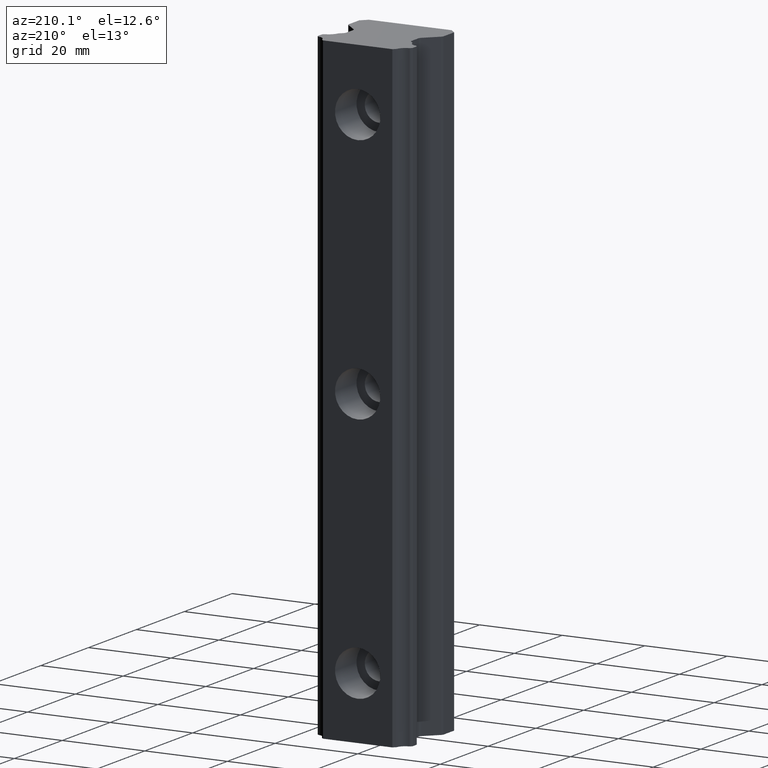
[diagram: clean part render]
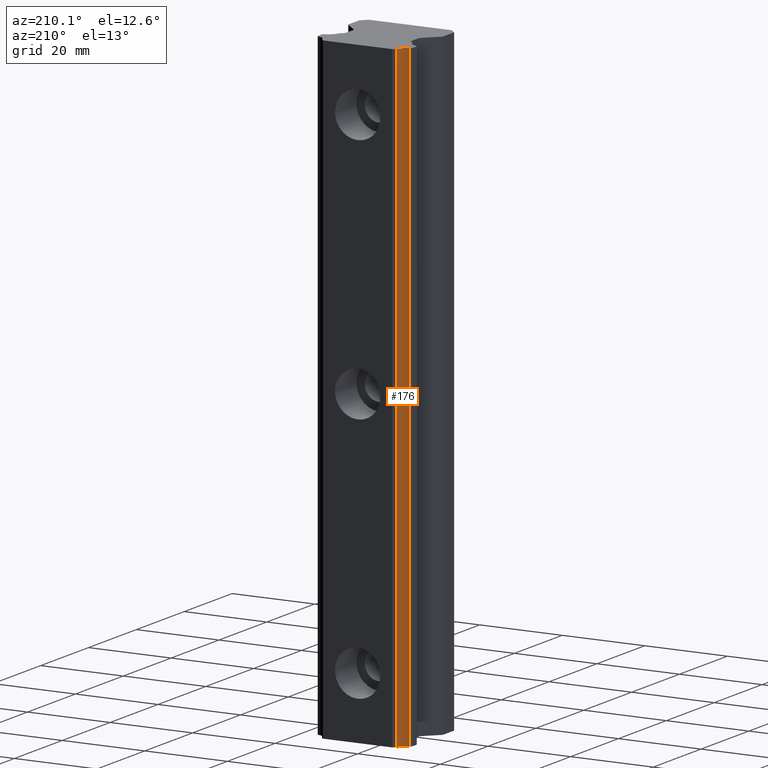
[diagram: same view with one face highlighted and labeled with its STEP entity id]
A machine part, auxiliary view. The second image highlights one B-rep face of the part: STEP entity #176.
In plain terms, the highlighted cylindrical surface (edge-blend (fillet) strip) has radius 2.43 mm, axis along (0, 0, 1).
Its self-contained STEP definition (entity closure, byte-faithful):
#103 = EDGE_CURVE ( 'NONE', #348, #424, #641, .T. ) ;
#115 = ORIENTED_EDGE ( 'NONE', *, *, #422, .F. ) ;
#166 = ORIENTED_EDGE ( 'NONE', *, *, #187, .F. ) ;
#167 = ORIENTED_EDGE ( 'NONE', *, *, #103, .T. ) ;
#168 = ORIENTED_EDGE ( 'NONE', *, *, #338, .F. ) ;
#170 = EDGE_LOOP ( 'NONE', ( #166, #168, #167, #115 ) ) ;
#176 = ADVANCED_FACE ( 'NONE', ( #790 ), #789, .F. ) ;
#187 = EDGE_CURVE ( 'NONE', #339, #423, #823, .T. ) ;
#338 = EDGE_CURVE ( 'NONE', #348, #339, #1064, .T. ) ;
#339 = VERTEX_POINT ( 'NONE', #1060 ) ;
#348 = VERTEX_POINT ( 'NONE', #1099 ) ;
#422 = EDGE_CURVE ( 'NONE', #423, #424, #1225, .T. ) ;
#423 = VERTEX_POINT ( 'NONE', #1221 ) ;
#424 = VERTEX_POINT ( 'NONE', #1220 ) ;
#637 = DIRECTION ( 'NONE',  ( 1.000000000000000000, 0.0000000000000000000, 0.0000000000000000000 ) ) ;
#638 = DIRECTION ( 'NONE',  ( 0.0000000000000000000, 0.0000000000000000000, -1.000000000000000000 ) ) ;
#639 = CARTESIAN_POINT ( 'NONE',  ( -11.44706701449000100, -0.2575229855059000300, -75.00000000000000000 ) ) ;
#640 = AXIS2_PLACEMENT_3D ( 'NONE', #639, #638, #637 ) ;
#641 = CIRCLE ( 'NONE', #640, 2.429999999999999700 ) ;
#784 = DIRECTION ( 'NONE',  ( 1.000000000000000000, 0.0000000000000000000, 0.0000000000000000000 ) ) ;
#785 = DIRECTION ( 'NONE',  ( 0.0000000000000000000, 0.0000000000000000000, 1.000000000000000000 ) ) ;
#786 = CARTESIAN_POINT ( 'NONE',  ( -11.44706701449000100, -0.2575229855059000300, -75.00000000000000000 ) ) ;
#787 = AXIS2_PLACEMENT_3D ( 'NONE', #786, #785, #784 ) ;
#789 = CYLINDRICAL_SURFACE ( 'NONE', #787, 2.429999999999999700 ) ;
#790 = FACE_OUTER_BOUND ( 'NONE', #170, .T. ) ;
#819 = DIRECTION ( 'NONE',  ( 1.000000000000000000, 0.0000000000000000000, 0.0000000000000000000 ) ) ;
#820 = DIRECTION ( 'NONE',  ( 0.0000000000000000000, 0.0000000000000000000, -1.000000000000000000 ) ) ;
#821 = CARTESIAN_POINT ( 'NONE',  ( -11.44706701449000100, -0.2575229855059000300, 75.00000000000000000 ) ) ;
#822 = AXIS2_PLACEMENT_3D ( 'NONE', #821, #820, #819 ) ;
#823 = CIRCLE ( 'NONE', #822, 2.429999999999999700 ) ;
#1060 = CARTESIAN_POINT ( 'NONE',  ( -9.073084848091571800, -0.7762798395041273800, 75.00000000000000000 ) ) ;
#1061 = DIRECTION ( 'NONE',  ( 0.0000000000000000000, 0.0000000000000000000, 1.000000000000000000 ) ) ;
#1062 = VECTOR ( 'NONE', #1061, 1000.000000000000000 ) ;
#1063 = CARTESIAN_POINT ( 'NONE',  ( -9.073084848179034300, -0.7762798399545829400, -75.00000000000000000 ) ) ;
#1064 = LINE ( 'NONE', #1063, #1062 ) ;
#1099 = CARTESIAN_POINT ( 'NONE',  ( -9.073084848091571800, -0.7762798395041273800, -75.00000000000000000 ) ) ;
#1220 = CARTESIAN_POINT ( 'NONE',  ( -10.92831016050646800, -2.631505151909449700, -75.00000000000000000 ) ) ;
#1221 = CARTESIAN_POINT ( 'NONE',  ( -10.92831016050646800, -2.631505151909449700, 75.00000000000000000 ) ) ;
#1222 = DIRECTION ( 'NONE',  ( 0.0000000000000000000, 0.0000000000000000000, -1.000000000000000000 ) ) ;
#1223 = VECTOR ( 'NONE', #1222, 1000.000000000000000 ) ;
#1224 = CARTESIAN_POINT ( 'NONE',  ( -10.92831016006976300, -2.631505151823082300, -75.00000000000000000 ) ) ;
#1225 = LINE ( 'NONE', #1224, #1223 ) ;